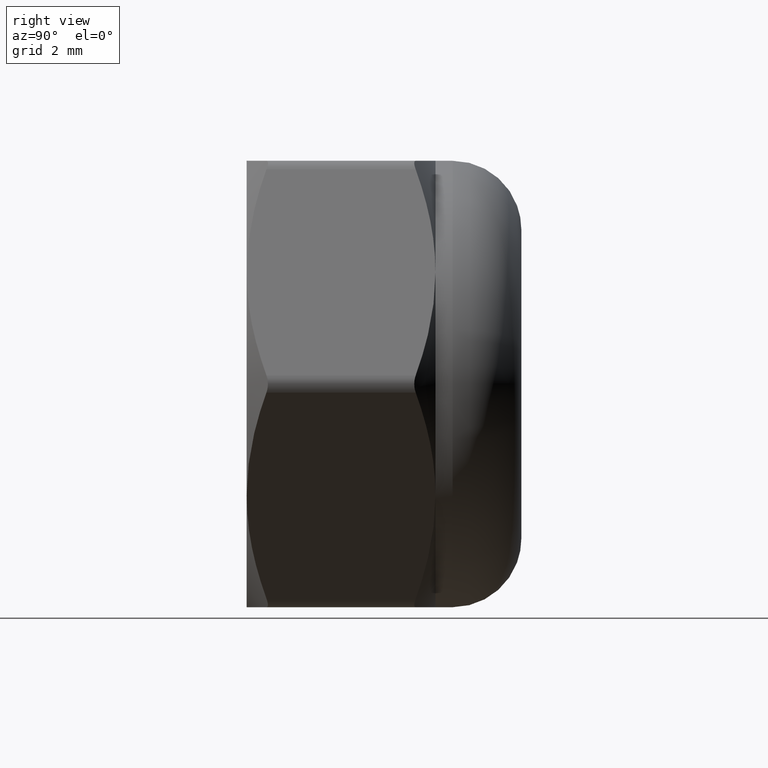
[diagram: clean part render]
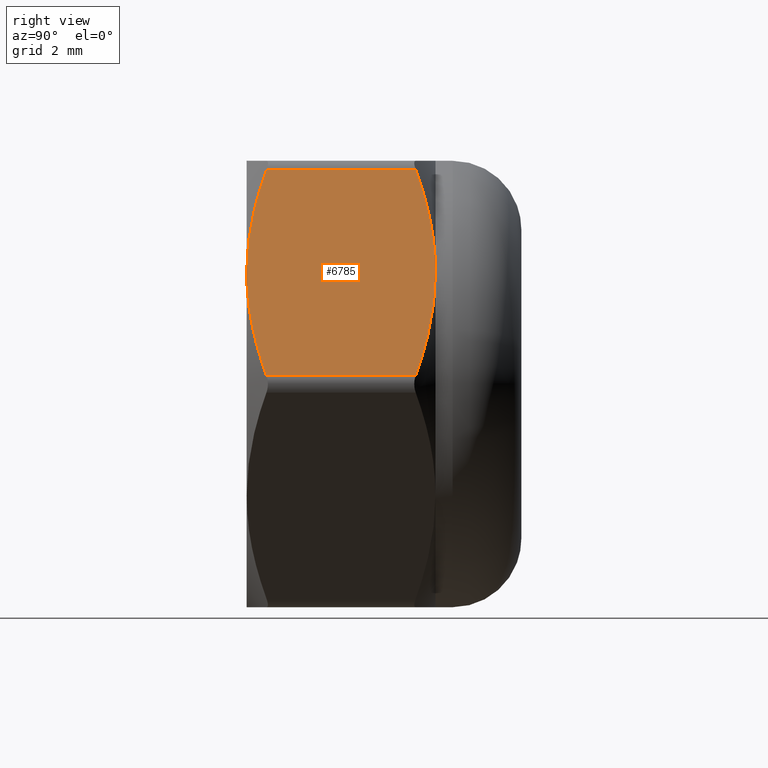
[diagram: same view with one face highlighted and labeled with its STEP entity id]
A machine part, right view. The second image highlights one B-rep face of the part: STEP entity #6785.
In plain terms, the highlighted planar face has unit normal (-0.866, 0, -0.5).
Its self-contained STEP definition (entity closure, byte-faithful):
#72 = VERTEX_POINT ( 'NONE', #9367 ) ;
#153 = ORIENTED_EDGE ( 'NONE', *, *, #2064, .T. ) ;
#391 = DIRECTION ( 'NONE',  ( -0.000000000000000000, 1.000000000000000000, -0.000000000000000000 ) ) ;
#851 = CARTESIAN_POINT ( 'NONE',  ( 7.361215932167724851, -2.173026712447924336, 0.2499999999999988065 ) ) ;
#963 = CARTESIAN_POINT ( 'NONE',  ( 5.481914803174338324, 2.750000000000001332, 3.505045038138095759 ) ) ;
#1455 = CARTESIAN_POINT ( 'NONE',  ( 5.629165124598851655, -2.750000000000000000, 3.249999999999999556 ) ) ;
#1497 = CARTESIAN_POINT ( 'NONE',  ( 5.629165124598850767, 2.750000000000000000, 3.249999999999999112 ) ) ;
#2064 = EDGE_CURVE ( 'NONE', #14118, #7323, #12944, .T. ) ;
#2221 = CARTESIAN_POINT ( 'NONE',  ( 5.040260083813378422, 2.683692102457102102, 4.270013451473853472 ) ) ;
#2739 = CARTESIAN_POINT ( 'NONE',  ( 5.036221027235753489, -2.750000000000002220, 4.277009302680946590 ) ) ;
#2816 = VECTOR ( 'NONE', #6703, 1000.000000000000000 ) ;
#2916 = CARTESIAN_POINT ( 'NONE',  ( 5.629165124598851655, -2.750000000000000000, 3.249999999999999556 ) ) ;
#3098 = CARTESIAN_POINT ( 'NONE',  ( 7.361215932167724851, -2.173026712447924336, 0.2499999999999988065 ) ) ;
#3320 = CARTESIAN_POINT ( 'NONE',  ( 6.218070165384318670, -2.683692102457103434, 2.229986548526141643 ) ) ;
#3342 = EDGE_CURVE ( 'NONE', #7323, #7578, #14127, .T. ) ;
#3607 = DIRECTION ( 'NONE',  ( -0.4999999999999998890, 0.000000000000000000, 0.8660254037844387076 ) ) ;
#3865 = EDGE_LOOP ( 'NONE', ( #14026, #8684, #153, #14919, #4653, #6134 ) ) ;
#4110 = CARTESIAN_POINT ( 'NONE',  ( 7.361215932171324638, 2.173026712445667030, 0.2499999999937647654 ) ) ;
#4204 = CARTESIAN_POINT ( 'NONE',  ( 3.897114317029971797, 2.750000000000000000, 6.249999999999998224 ) ) ;
#4456 = CARTESIAN_POINT ( 'NONE',  ( 3.897114317026372898, -2.173026712445666142, 6.250000000006232348 ) ) ;
#4557 = CARTESIAN_POINT ( 'NONE',  ( 6.796054001130133138, -2.494149538525839205, 1.228889179060850045 ) ) ;
#4653 = ORIENTED_EDGE ( 'NONE', *, *, #15974, .T. ) ;
#4799 = CARTESIAN_POINT ( 'NONE',  ( 6.222109221961943604, 2.750000000000001776, 2.222990697319049858 ) ) ;
#5730 = VERTEX_POINT ( 'NONE', #4456 ) ;
#5823 = CARTESIAN_POINT ( 'NONE',  ( 6.363381790087059287, -2.644676942911682982, 1.978299431610613723 ) ) ;
#6044 = CARTESIAN_POINT ( 'NONE',  ( 5.333351224887548980, 2.736396556155473281, 3.762364703885054507 ) ) ;
#6134 = ORIENTED_EDGE ( 'NONE', *, *, #8874, .T. ) ;
#6703 = DIRECTION ( 'NONE',  ( 0.000000000000000000, -1.000000000000000000, 0.000000000000000000 ) ) ;
#6785 = ADVANCED_FACE ( 'NONE', ( #15493 ), #8699, .F. ) ;
#7104 = CARTESIAN_POINT ( 'NONE',  ( 4.178166972653250433, 2.349271865248639735, 5.763202520858323297 ) ) ;
#7323 = VERTEX_POINT ( 'NONE', #1497 ) ;
#7553 = CARTESIAN_POINT ( 'NONE',  ( 6.796961328993005758, 2.526864816324430052, 1.227317641103227608 ) ) ;
#7578 = VERTEX_POINT ( 'NONE', #12780 ) ;
#7699 = B_SPLINE_CURVE_WITH_KNOTS ( 'NONE', 3,
 ( #9070, #9230, #2739, #2916 ),
 .UNSPECIFIED., .F., .F.,
 ( 4, 4 ),
 ( 0.0003001430305574236189, 0.003811933486162280126 ),
 .UNSPECIFIED. ) ;
#8127 = EDGE_CURVE ( 'NONE', #14195, #14118, #13481, .T. ) ;
#8398 = CARTESIAN_POINT ( 'NONE',  ( 3.897114317029972241, 2.173026712447923448, 6.249999999999997335 ) ) ;
#8684 = ORIENTED_EDGE ( 'NONE', *, *, #8127, .T. ) ;
#8691 = VECTOR ( 'NONE', #391, 1000.000000000000000 ) ;
#8699 = PLANE ( 'NONE',  #10331 ) ;
#8874 = EDGE_CURVE ( 'NONE', #5730, #72, #7699, .T. ) ;
#8962 = EDGE_CURVE ( 'NONE', #72, #14195, #8999, .T. ) ;
#8999 = B_SPLINE_CURVE_WITH_KNOTS ( 'NONE', 3,
 ( #1455, #14439, #14943, #3320, #5823, #4557, #9612, #851 ),
 .UNSPECIFIED., .F., .F.,
 ( 4, 2, 2, 4 ),
 ( 0.003811933486162280126, 0.004684043143148511855, 0.005556152800134744017, 0.007300372114107208342 ),
 .UNSPECIFIED. ) ;
#9070 = CARTESIAN_POINT ( 'NONE',  ( 3.897114317026372898, -2.173026712445666142, 6.250000000006232348 ) ) ;
#9230 = CARTESIAN_POINT ( 'NONE',  ( 4.461368920204691335, -2.526864816324429608, 5.272682358896768839 ) ) ;
#9367 = CARTESIAN_POINT ( 'NONE',  ( 5.629165124598851655, -2.750000000000000000, 3.249999999999999556 ) ) ;
#9612 = CARTESIAN_POINT ( 'NONE',  ( 7.080163276544448436, -2.349271865248640623, 0.7367974791416744829 ) ) ;
#9788 = CARTESIAN_POINT ( 'NONE',  ( 4.894948459110637806, 2.644676942911683870, 4.521700568389382724 ) ) ;
#10331 = AXIS2_PLACEMENT_3D ( 'NONE', #13986, #13823, #3607 ) ;
#10369 = CARTESIAN_POINT ( 'NONE',  ( 5.629165124598850767, 2.750000000000000000, 3.249999999999999112 ) ) ;
#10506 = CARTESIAN_POINT ( 'NONE',  ( 7.361215932167724851, 2.750000000000000000, 0.2499999999999993616 ) ) ;
#11082 = CARTESIAN_POINT ( 'NONE',  ( 4.462276248067566620, 2.494149538525838317, 5.271110820939145292 ) ) ;
#12617 = CARTESIAN_POINT ( 'NONE',  ( 7.361215932171324638, 2.173026712445667030, 0.2499999999937647654 ) ) ;
#12780 = CARTESIAN_POINT ( 'NONE',  ( 3.897114317029972241, 2.173026712447923448, 6.249999999999997335 ) ) ;
#12944 = B_SPLINE_CURVE_WITH_KNOTS ( 'NONE', 3,
 ( #12617, #7553, #4799, #10369 ),
 .UNSPECIFIED., .F., .F.,
 ( 4, 4 ),
 ( 0.0003001430305574239441, 0.003811933486162279693 ),
 .UNSPECIFIED. ) ;
#13449 = LINE ( 'NONE', #4204, #2816 ) ;
#13481 = LINE ( 'NONE', #10506, #8691 ) ;
#13704 = CARTESIAN_POINT ( 'NONE',  ( 5.629165124598850767, 2.750000000000000000, 3.249999999999999112 ) ) ;
#13823 = DIRECTION ( 'NONE',  ( -0.8660254037844387076, 0.000000000000000000, -0.4999999999999998890 ) ) ;
#13986 = CARTESIAN_POINT ( 'NONE',  ( 3.752776749732565253, 2.750000000000000000, 6.499999999999999112 ) ) ;
#14026 = ORIENTED_EDGE ( 'NONE', *, *, #8962, .T. ) ;
#14118 = VERTEX_POINT ( 'NONE', #4110 ) ;
#14127 = B_SPLINE_CURVE_WITH_KNOTS ( 'NONE', 3,
 ( #13704, #963, #6044, #2221, #9788, #11082, #7104, #8398 ),
 .UNSPECIFIED., .F., .F.,
 ( 4, 2, 2, 4 ),
 ( 0.003811933486162279693, 0.004684043143148511855, 0.005556152800134743150, 0.007300372114107207475 ),
 .UNSPECIFIED. ) ;
#14195 = VERTEX_POINT ( 'NONE', #3098 ) ;
#14439 = CARTESIAN_POINT ( 'NONE',  ( 5.776415446023354328, -2.750000000000002665, 2.994954961861900689 ) ) ;
#14919 = ORIENTED_EDGE ( 'NONE', *, *, #3342, .T. ) ;
#14943 = CARTESIAN_POINT ( 'NONE',  ( 5.924979024310149001, -2.736396556155473725, 2.737635296114941497 ) ) ;
#15493 = FACE_OUTER_BOUND ( 'NONE', #3865, .T. ) ;
#15974 = EDGE_CURVE ( 'NONE', #7578, #5730, #13449, .T. ) ;